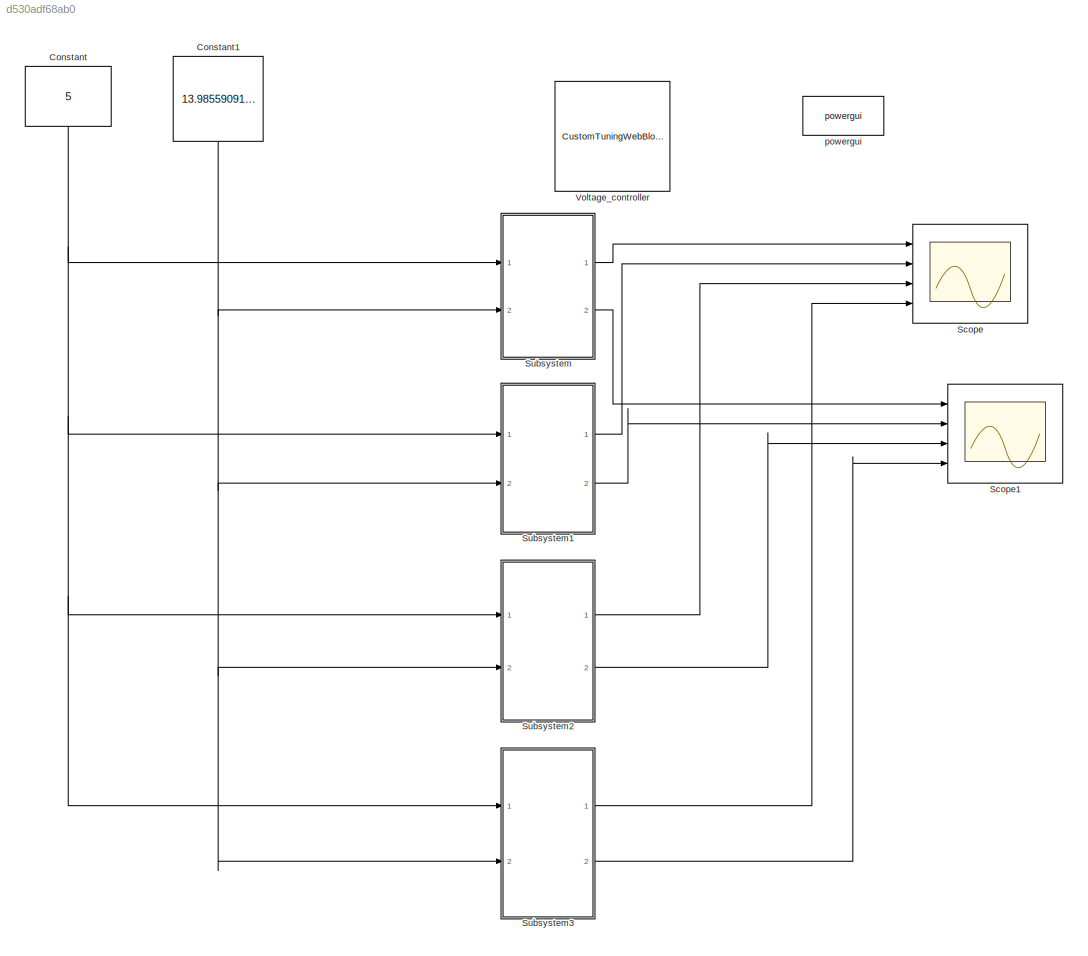
MODEL slx_d530adf68ab0
KIND model
CONFIG AbsTol = auto
CONFIG EnableMultiTasking = off
CONFIG FixedStep = auto
CONFIG MaxStep = auto
CONFIG MinStep = auto
CONFIG RelTol = 1e-3
CONFIG SampleTimeConstraint = Unconstrained
CONFIG SolverName = VariableStepAuto
CONFIG StartTime = 0.0
CONFIG StopTime = 1
BLOCK [Constant] Constant
  NameLocation = left
  Value = 5
BLOCK [Constant] Constant1
  NameLocation = left
  Value = 13.98559091336166
BLOCK [Scope] Scope
  Floating = off
  NumInputPorts = 4
  Ports = [4]
  ScopeSpecificationString = Simulink.scopes.TimeScopeBlockCfg('CurrentConfiguration', extmgr.ConfigurationSet(extmgr.Configuration('Core','General UI',true),extmgr.Configuration('Core','Source UI',true),extmgr.Configuration('Sources','WiredSimulink',true,'DataLoggingVariableName','ScopeData3'),extmgr.Configuration('Visuals','Time Domain',true,'SerializedDisplays',{struct('MinYLimReal','-216.57302','MaxYLimReal','1779.26618',...<+1557ch>
BLOCK [Scope] Scope1
  Floating = off
  NumInputPorts = 4
  Ports = [4]
  ScopeSpecificationString = Simulink.scopes.TimeScopeBlockCfg('CurrentConfiguration', extmgr.ConfigurationSet(extmgr.Configuration('Core','General UI',true),extmgr.Configuration('Core','Source UI',true),extmgr.Configuration('Sources','WiredSimulink',true,'DataLoggingVariableName','ScopeData4'),extmgr.Configuration('Visuals','Time Domain',true,'SerializedDisplays',{struct('MinYLimReal','-6.73725','MaxYLimReal','60.63522','YLa...<+1666ch>
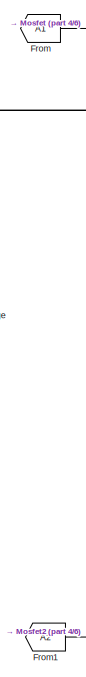
[diagram: Subsystem - part 1/6, top left region]
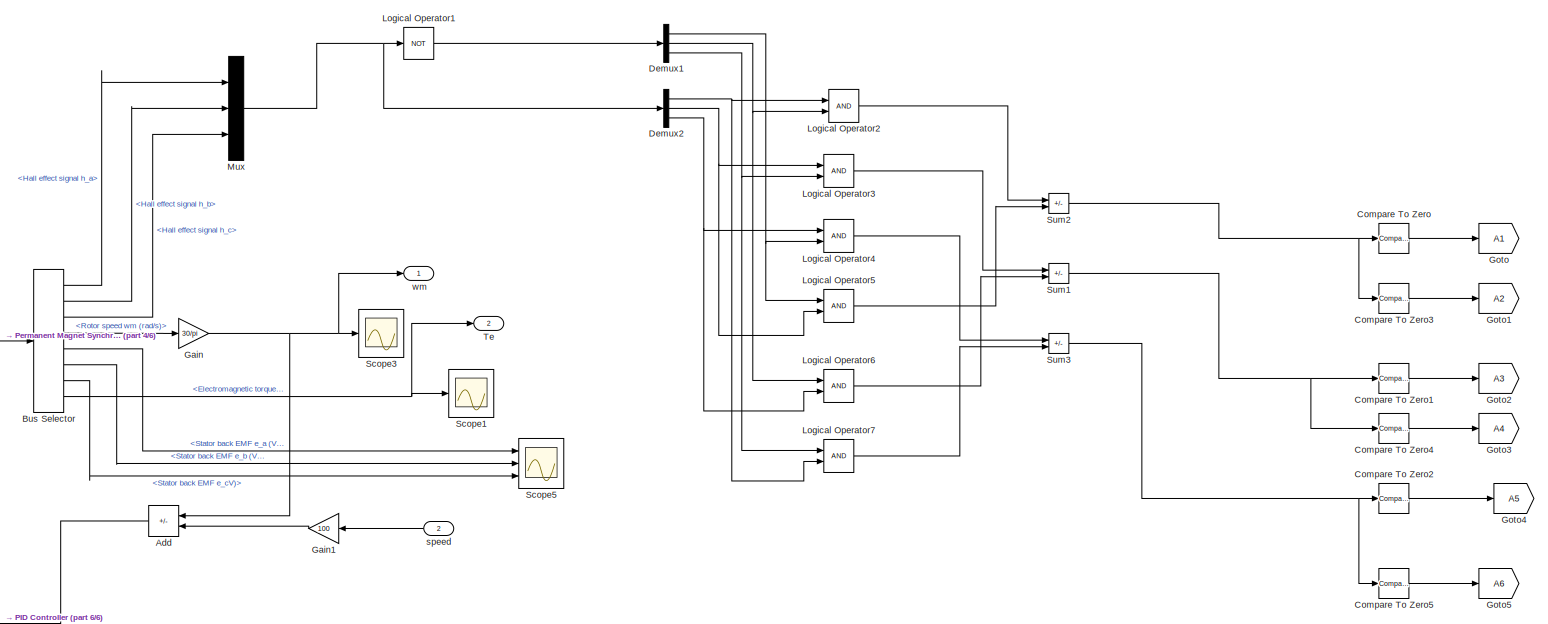
[diagram: Subsystem - part 2/6, top right region]
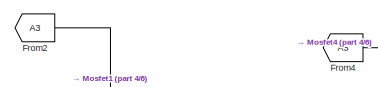
[diagram: Subsystem - part 3/6, top left region]
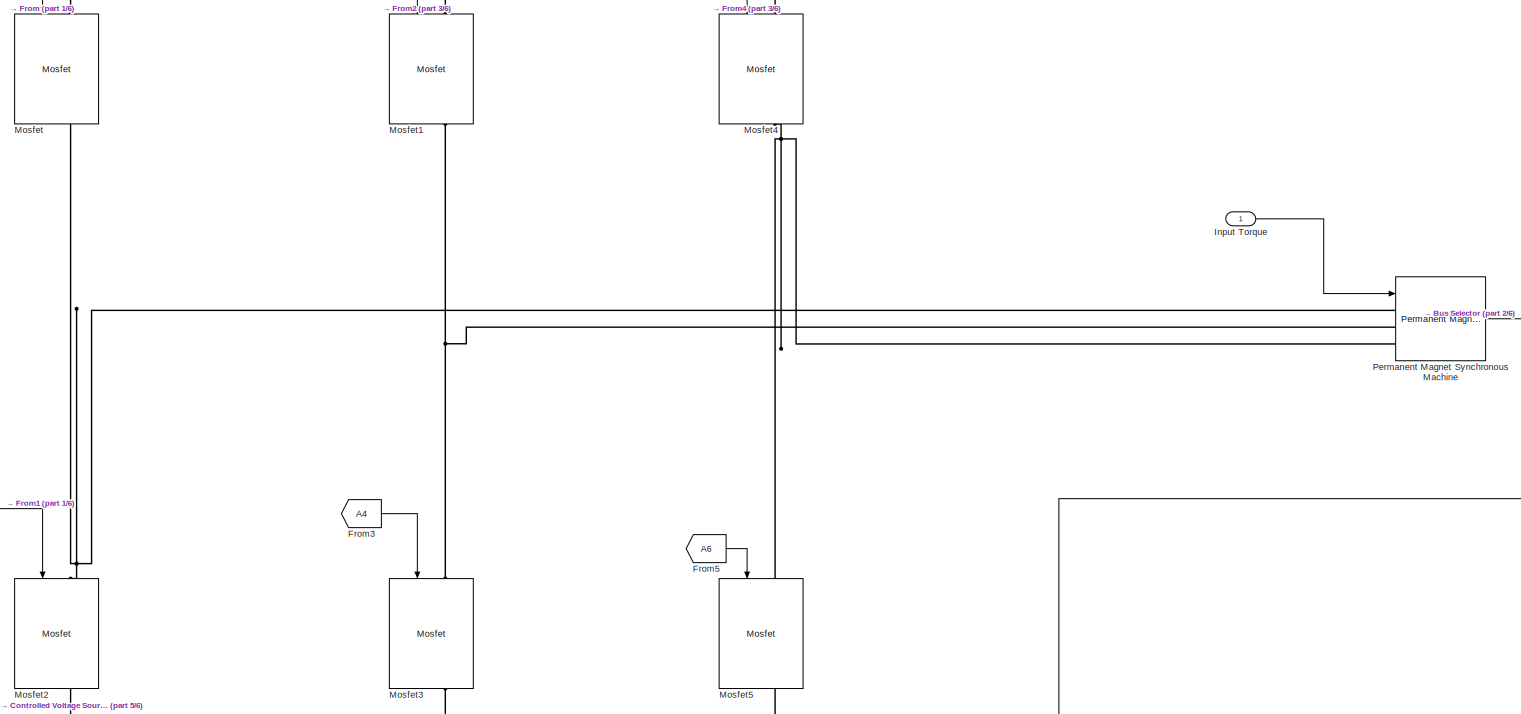
[diagram: Subsystem - part 4/6, middle left region]
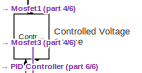
[diagram: Subsystem - part 5/6, top left region]
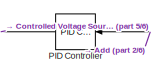
[diagram: Subsystem - part 6/6, central region]
BLOCK [SubSystem] Subsystem
  Ports = [2, 2]
  RequestExecContextInheritance = off
BLOCK [Sum] Subsystem/Add
  IconShape = rectangular
  Inputs = -+
  Ports = [2, 1]
BLOCK [BusSelector] Subsystem/Bus Selector
  OutputSignals = Hall effect signal h_a,Hall effect signal h_b,Hall effect signal h_c,Rotor speed wm (rad/s),Stator back EMF e_a (V),Stator back EMF e_b (V),Stator back EMF e_cV),Electromagnetic torque Te (N*m)  <repeated x4 — deduplicated; at blocks: Bus Selector>
  Ports = [1, 8]
BLOCK [Reference] Subsystem/Compare To Zero  REF=simulink/Logic and Bit
Operations/Compare
To Zero
  NameLocation = top
  Ports = [1, 1]
  SourceBlock = simulink/Logic and Bit\nOperations/Compare\nTo Zero
  SourceProductBaseCode = SL
  SourceType = Compare To Zero
BLOCK [Reference] Subsystem/Compare To Zero1  REF=simulink/Logic and Bit
Operations/Compare
To Zero
  NameLocation = top
  Ports = [1, 1]
  SourceBlock = simulink/Logic and Bit\nOperations/Compare\nTo Zero
  SourceProductBaseCode = SL
  SourceType = Compare To Zero
BLOCK [Reference] Subsystem/Compare To Zero2  REF=simulink/Logic and Bit
Operations/Compare
To Zero
  NameLocation = top
  Ports = [1, 1]
  SourceBlock = simulink/Logic and Bit\nOperations/Compare\nTo Zero
  SourceProductBaseCode = SL
  SourceType = Compare To Zero
BLOCK [Reference] Subsystem/Compare To Zero3  REF=simulink/Logic and Bit
Operations/Compare
To Zero
  NameLocation = top
  Ports = [1, 1]
  SourceBlock = simulink/Logic and Bit\nOperations/Compare\nTo Zero
  SourceProductBaseCode = SL
  SourceType = Compare To Zero
BLOCK [Reference] Subsystem/Compare To Zero4  REF=simulink/Logic and Bit
Operations/Compare
To Zero
  NameLocation = top
  Ports = [1, 1]
  SourceBlock = simulink/Logic and Bit\nOperations/Compare\nTo Zero
  SourceProductBaseCode = SL
  SourceType = Compare To Zero
BLOCK [Reference] Subsystem/Compare To Zero5  REF=simulink/Logic and Bit
Operations/Compare
To Zero
  NameLocation = top
  Ports = [1, 1]
  SourceBlock = simulink/Logic and Bit\nOperations/Compare\nTo Zero
  SourceProductBaseCode = SL
  SourceType = Compare To Zero
BLOCK [Reference] Subsystem/Controlled Voltage Source  REF=spsControlledVoltageSourceLib/Controlled Voltage Source
  Ports = [1, 0, 0, 0, 0, 1, 1]
  SourceBlock = spsControlledVoltageSourceLib/Controlled Voltage Source
  SourceProductBaseCode = PS
  SourceType = Controlled Voltage Source
BLOCK [Demux] Subsystem/Demux1
  Outputs = 3
  Ports = [1, 3]
BLOCK [Demux] Subsystem/Demux2
  Outputs = 3
  Ports = [1, 3]
BLOCK [From] Subsystem/From
  GotoTag = A1
BLOCK [From] Subsystem/From1
  GotoTag = A2
BLOCK [From] Subsystem/From2
  GotoTag = A3
BLOCK [From] Subsystem/From3
  GotoTag = A4
BLOCK [From] Subsystem/From4
  GotoTag = A5
BLOCK [From] Subsystem/From5
  GotoTag = A6
BLOCK [Gain] Subsystem/Gain
  Gain = 30/pi
BLOCK [Gain] Subsystem/Gain1
  Gain = 100
  NameLocation = top
BLOCK [Goto] Subsystem/Goto
  GotoTag = A1
BLOCK [Goto] Subsystem/Goto1
  GotoTag = A2
BLOCK [Goto] Subsystem/Goto2
  GotoTag = A3
BLOCK [Goto] Subsystem/Goto3
  GotoTag = A4
BLOCK [Goto] Subsystem/Goto4
  GotoTag = A5
BLOCK [Goto] Subsystem/Goto5
  GotoTag = A6
BLOCK [Inport] Subsystem/Input Torque
BLOCK [Logic] Subsystem/Logical Operator1
  AllPortsSameDT = off
  Operator = NOT
  OutDataTypeStr = boolean
  Ports = [1, 1]
BLOCK [Logic] Subsystem/Logical Operator2
  AllPortsSameDT = off
  OutDataTypeStr = boolean
  Ports = [2, 1]
BLOCK [Logic] Subsystem/Logical Operator3
  AllPortsSameDT = off
  OutDataTypeStr = boolean
  Ports = [2, 1]
BLOCK [Logic] Subsystem/Logical Operator4
  AllPortsSameDT = off
  OutDataTypeStr = boolean
  Ports = [2, 1]
BLOCK [Logic] Subsystem/Logical Operator5
  AllPortsSameDT = off
  OutDataTypeStr = boolean
  Ports = [2, 1]
BLOCK [Logic] Subsystem/Logical Operator6
  AllPortsSameDT = off
  OutDataTypeStr = boolean
  Ports = [2, 1]
BLOCK [Logic] Subsystem/Logical Operator7
  AllPortsSameDT = off
  OutDataTypeStr = boolean
  Ports = [2, 1]
BLOCK [Reference] Subsystem/Mosfet  REF=spsMosfetLib/Mosfet
  NameLocation = left
  Ports = [1, 1, 0, 0, 0, 1, 1]
  SourceBlock = spsMosfetLib/Mosfet
  SourceProductBaseCode = PS
  SourceType = Mosfet
BLOCK [Reference] Subsystem/Mosfet1  REF=spsMosfetLib/Mosfet
  NameLocation = left
  Ports = [1, 1, 0, 0, 0, 1, 1]
  SourceBlock = spsMosfetLib/Mosfet
  SourceProductBaseCode = PS
  SourceType = Mosfet
BLOCK [Reference] Subsystem/Mosfet2  REF=spsMosfetLib/Mosfet
  NameLocation = left
  Ports = [1, 1, 0, 0, 0, 1, 1]
  SourceBlock = spsMosfetLib/Mosfet
  SourceProductBaseCode = PS
  SourceType = Mosfet
BLOCK [Reference] Subsystem/Mosfet3  REF=spsMosfetLib/Mosfet
  NameLocation = left
  Ports = [1, 1, 0, 0, 0, 1, 1]
  SourceBlock = spsMosfetLib/Mosfet
  SourceProductBaseCode = PS
  SourceType = Mosfet
BLOCK [Reference] Subsystem/Mosfet4  REF=spsMosfetLib/Mosfet
  NameLocation = left
  Ports = [1, 1, 0, 0, 0, 1, 1]
  SourceBlock = spsMosfetLib/Mosfet
  SourceProductBaseCode = PS
  SourceType = Mosfet
BLOCK [Reference] Subsystem/Mosfet5  REF=spsMosfetLib/Mosfet
  NameLocation = left
  Ports = [1, 1, 0, 0, 0, 1, 1]
  SourceBlock = spsMosfetLib/Mosfet
  SourceProductBaseCode = PS
  SourceType = Mosfet
BLOCK [Mux] Subsystem/Mux
  DisplayOption = bar
  Inputs = 3
  Ports = [3, 1]
BLOCK [Reference] Subsystem/PID Controller  REF=slpidlib/PID Controller
  NameLocation = top
  Ports = [1, 1]
  SourceBlock = slpidlib/PID Controller
  SourceProductBaseCode = SL
  SourceType = PID 1dof
BLOCK [Reference] Subsystem/Permanent Magnet Synchronous Machine  REF=spsPermanentMagnetSynchronousMachineLib/Permanent Magnet
Synchronous Machine
  Ports = [1, 1, 0, 0, 0, 3]
  SourceBlock = spsPermanentMagnetSynchronousMachineLib/Permanent Magnet\nSynchronous Machine
  SourceProductBaseCode = PS
  SourceType = Permanent Magnet Synchronous Machine
BLOCK [Scope] Subsystem/Scope1
  Floating = off
  NumInputPorts = 1
  Ports = [1]
  ScopeSpecificationString = Simulink.scopes.TimeScopeBlockCfg('CurrentConfiguration', extmgr.ConfigurationSet(extmgr.Configuration('Core','General UI',true),extmgr.Configuration('Core','Source UI',true),extmgr.Configuration('Sources','WiredSimulink',true,'DataLoggingVariableName','ScopeData1'),extmgr.Configuration('Visuals','Time Domain',true,'SerializedDisplays',{struct('MinYLimReal','-15.67404','MaxYLimReal','52.63352','YL...<+1487ch>  <repeated x4 — deduplicated; at blocks: Scope1>
BLOCK [Scope] Subsystem/Scope3
  Floating = off
  NumInputPorts = 1
  Ports = [1]
  ScopeSpecificationString = Simulink.scopes.TimeScopeBlockCfg('CurrentConfiguration', extmgr.ConfigurationSet(extmgr.Configuration('Core','General UI',true),extmgr.Configuration('Core','Source UI',true),extmgr.Configuration('Sources','WiredSimulink',true,'DataLoggingVariableName','ScopeData2'),extmgr.Configuration('Visuals','Time Domain',true,'SerializedDisplays',{struct('MinYLimReal','-253.95955','MaxYLimReal','1375.95991',...<+1445ch>  <repeated x4 — deduplicated; at blocks: Scope3>
BLOCK [Scope] Subsystem/Scope5
  Floating = off
  NumInputPorts = 3
  Ports = [3]
  ScopeSpecificationString = Simulink.scopes.TimeScopeBlockCfg('CurrentConfiguration', extmgr.ConfigurationSet(extmgr.Configuration('Core','General UI',true),extmgr.Configuration('Core','Source UI',true),extmgr.Configuration('Sources','WiredSimulink',true),extmgr.Configuration('Visuals','Time Domain',true,'SerializedDisplays',{struct('MinYLimReal','-75.83196','MaxYLimReal','75.83196','YLabelReal','','MinYLimMag','0.00000','Ma...<+1459ch>  <repeated x4 — deduplicated; at blocks: Scope5>
BLOCK [Sum] Subsystem/Sum1
  IconShape = rectangular
  Inputs = +-
  OutDataTypeStr = double
  Ports = [2, 1]
BLOCK [Sum] Subsystem/Sum2
  IconShape = rectangular
  Inputs = +-
  OutDataTypeStr = double
  Ports = [2, 1]
BLOCK [Sum] Subsystem/Sum3
  IconShape = rectangular
  Inputs = +-
  OutDataTypeStr = double
  Ports = [2, 1]
BLOCK [Outport] Subsystem/Te
  Port = 2
BLOCK [Inport] Subsystem/speed
  Port = 2
BLOCK [Outport] Subsystem/wm
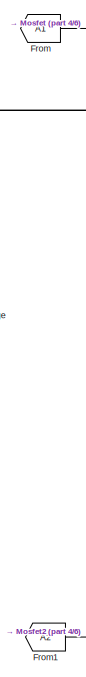
[diagram: Subsystem1 - part 1/6, top left region]
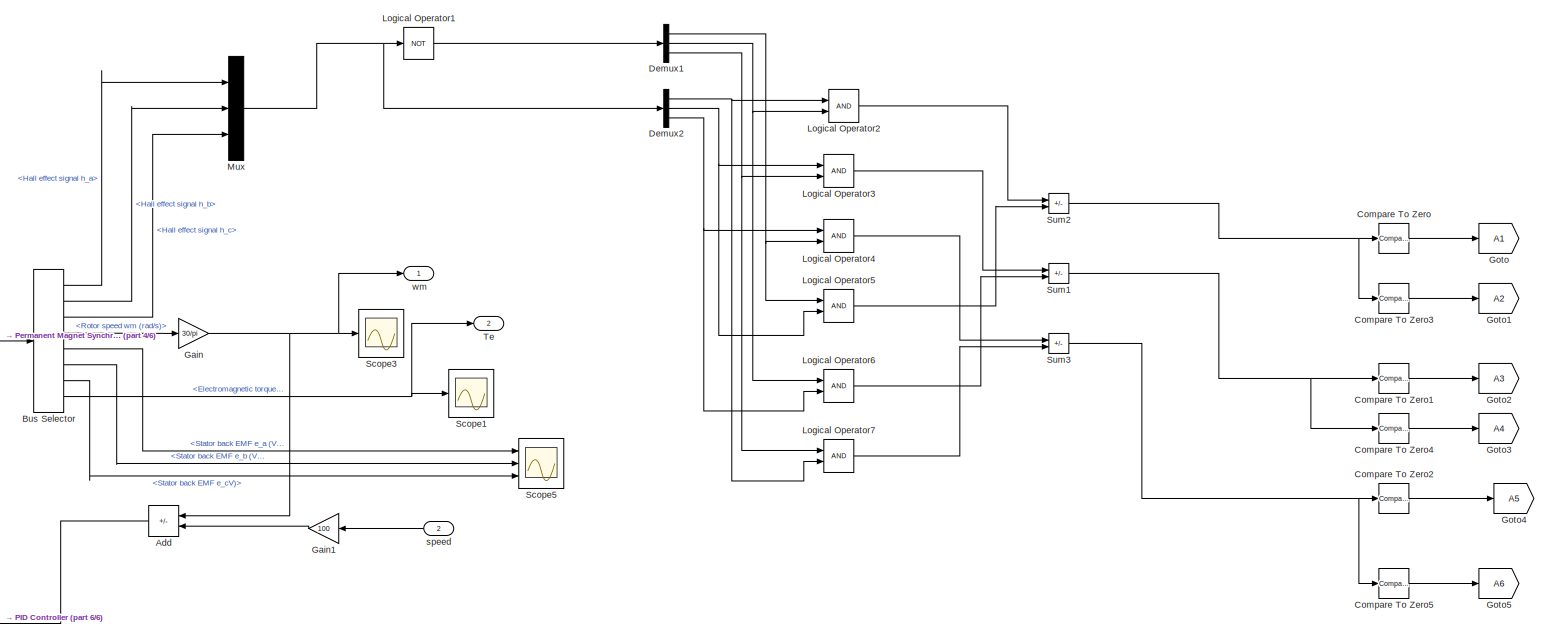
[diagram: Subsystem1 - part 2/6, top right region]
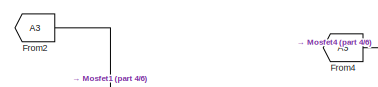
[diagram: Subsystem1 - part 3/6, top left region]
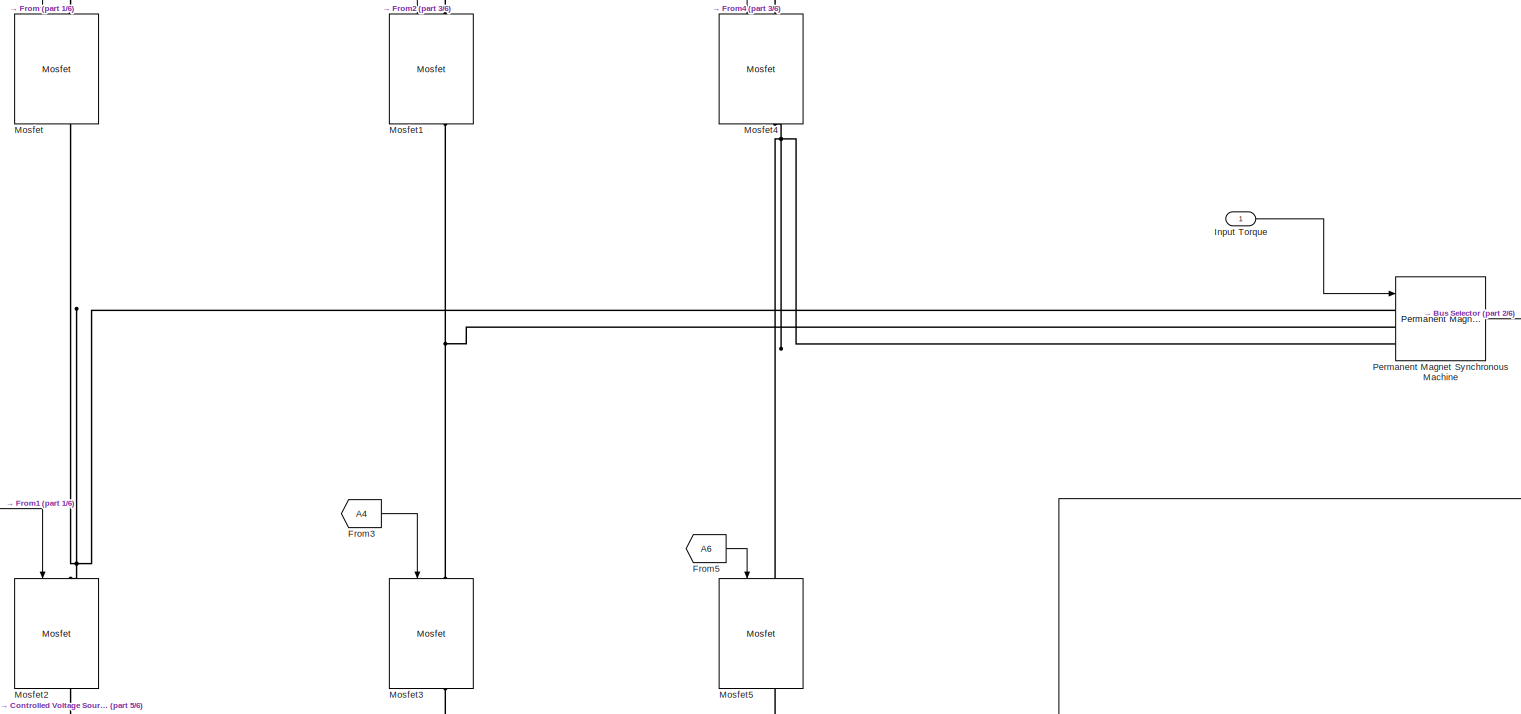
[diagram: Subsystem1 - part 4/6, middle left region]
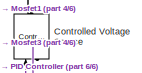
[diagram: Subsystem1 - part 5/6, top left region]
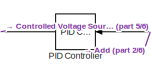
[diagram: Subsystem1 - part 6/6, central region]
BLOCK [SubSystem] Subsystem1
  Ports = [2, 2]
  RequestExecContextInheritance = off
BLOCK [Sum] Subsystem1/Add
  IconShape = rectangular
  Inputs = -+
  Ports = [2, 1]
BLOCK [BusSelector] Subsystem1/Bus Selector
  Ports = [1, 8]
BLOCK [Reference] Subsystem1/Compare To Zero  REF=simulink/Logic and Bit
Operations/Compare
To Zero
  NameLocation = top
  Ports = [1, 1]
  SourceBlock = simulink/Logic and Bit\nOperations/Compare\nTo Zero
  SourceProductBaseCode = SL
  SourceType = Compare To Zero
BLOCK [Reference] Subsystem1/Compare To Zero1  REF=simulink/Logic and Bit
Operations/Compare
To Zero
  NameLocation = top
  Ports = [1, 1]
  SourceBlock = simulink/Logic and Bit\nOperations/Compare\nTo Zero
  SourceProductBaseCode = SL
  SourceType = Compare To Zero
BLOCK [Reference] Subsystem1/Compare To Zero2  REF=simulink/Logic and Bit
Operations/Compare
To Zero
  NameLocation = top
  Ports = [1, 1]
  SourceBlock = simulink/Logic and Bit\nOperations/Compare\nTo Zero
  SourceProductBaseCode = SL
  SourceType = Compare To Zero
BLOCK [Reference] Subsystem1/Compare To Zero3  REF=simulink/Logic and Bit
Operations/Compare
To Zero
  NameLocation = top
  Ports = [1, 1]
  SourceBlock = simulink/Logic and Bit\nOperations/Compare\nTo Zero
  SourceProductBaseCode = SL
  SourceType = Compare To Zero
BLOCK [Reference] Subsystem1/Compare To Zero4  REF=simulink/Logic and Bit
Operations/Compare
To Zero
  NameLocation = top
  Ports = [1, 1]
  SourceBlock = simulink/Logic and Bit\nOperations/Compare\nTo Zero
  SourceProductBaseCode = SL
  SourceType = Compare To Zero
BLOCK [Reference] Subsystem1/Compare To Zero5  REF=simulink/Logic and Bit
Operations/Compare
To Zero
  NameLocation = top
  Ports = [1, 1]
  SourceBlock = simulink/Logic and Bit\nOperations/Compare\nTo Zero
  SourceProductBaseCode = SL
  SourceType = Compare To Zero
BLOCK [Reference] Subsystem1/Controlled Voltage Source  REF=spsControlledVoltageSourceLib/Controlled Voltage Source
  Ports = [1, 0, 0, 0, 0, 1, 1]
  SourceBlock = spsControlledVoltageSourceLib/Controlled Voltage Source
  SourceProductBaseCode = PS
  SourceType = Controlled Voltage Source
BLOCK [Demux] Subsystem1/Demux1
  Outputs = 3
  Ports = [1, 3]
BLOCK [Demux] Subsystem1/Demux2
  Outputs = 3
  Ports = [1, 3]
BLOCK [From] Subsystem1/From
  GotoTag = A1
BLOCK [From] Subsystem1/From1
  GotoTag = A2
BLOCK [From] Subsystem1/From2
  GotoTag = A3
BLOCK [From] Subsystem1/From3
  GotoTag = A4
BLOCK [From] Subsystem1/From4
  GotoTag = A5
BLOCK [From] Subsystem1/From5
  GotoTag = A6
BLOCK [Gain] Subsystem1/Gain
  Gain = 30/pi
BLOCK [Gain] Subsystem1/Gain1
  Gain = 100
  NameLocation = top
BLOCK [Goto] Subsystem1/Goto
  GotoTag = A1
BLOCK [Goto] Subsystem1/Goto1
  GotoTag = A2
BLOCK [Goto] Subsystem1/Goto2
  GotoTag = A3
BLOCK [Goto] Subsystem1/Goto3
  GotoTag = A4
BLOCK [Goto] Subsystem1/Goto4
  GotoTag = A5
BLOCK [Goto] Subsystem1/Goto5
  GotoTag = A6
BLOCK [Inport] Subsystem1/Input Torque
BLOCK [Logic] Subsystem1/Logical Operator1
  AllPortsSameDT = off
  Operator = NOT
  OutDataTypeStr = boolean
  Ports = [1, 1]
BLOCK [Logic] Subsystem1/Logical Operator2
  AllPortsSameDT = off
  OutDataTypeStr = boolean
  Ports = [2, 1]
BLOCK [Logic] Subsystem1/Logical Operator3
  AllPortsSameDT = off
  OutDataTypeStr = boolean
  Ports = [2, 1]
BLOCK [Logic] Subsystem1/Logical Operator4
  AllPortsSameDT = off
  OutDataTypeStr = boolean
  Ports = [2, 1]
BLOCK [Logic] Subsystem1/Logical Operator5
  AllPortsSameDT = off
  OutDataTypeStr = boolean
  Ports = [2, 1]
BLOCK [Logic] Subsystem1/Logical Operator6
  AllPortsSameDT = off
  OutDataTypeStr = boolean
  Ports = [2, 1]
BLOCK [Logic] Subsystem1/Logical Operator7
  AllPortsSameDT = off
  OutDataTypeStr = boolean
  Ports = [2, 1]
BLOCK [Reference] Subsystem1/Mosfet  REF=spsMosfetLib/Mosfet
  NameLocation = left
  Ports = [1, 1, 0, 0, 0, 1, 1]
  SourceBlock = spsMosfetLib/Mosfet
  SourceProductBaseCode = PS
  SourceType = Mosfet
BLOCK [Reference] Subsystem1/Mosfet1  REF=spsMosfetLib/Mosfet
  NameLocation = left
  Ports = [1, 1, 0, 0, 0, 1, 1]
  SourceBlock = spsMosfetLib/Mosfet
  SourceProductBaseCode = PS
  SourceType = Mosfet
BLOCK [Reference] Subsystem1/Mosfet2  REF=spsMosfetLib/Mosfet
  NameLocation = left
  Ports = [1, 1, 0, 0, 0, 1, 1]
  SourceBlock = spsMosfetLib/Mosfet
  SourceProductBaseCode = PS
  SourceType = Mosfet
BLOCK [Reference] Subsystem1/Mosfet3  REF=spsMosfetLib/Mosfet
  NameLocation = left
  Ports = [1, 1, 0, 0, 0, 1, 1]
  SourceBlock = spsMosfetLib/Mosfet
  SourceProductBaseCode = PS
  SourceType = Mosfet
BLOCK [Reference] Subsystem1/Mosfet4  REF=spsMosfetLib/Mosfet
  NameLocation = left
  Ports = [1, 1, 0, 0, 0, 1, 1]
  SourceBlock = spsMosfetLib/Mosfet
  SourceProductBaseCode = PS
  SourceType = Mosfet
BLOCK [Reference] Subsystem1/Mosfet5  REF=spsMosfetLib/Mosfet
  NameLocation = left
  Ports = [1, 1, 0, 0, 0, 1, 1]
  SourceBlock = spsMosfetLib/Mosfet
  SourceProductBaseCode = PS
  SourceType = Mosfet
BLOCK [Mux] Subsystem1/Mux
  DisplayOption = bar
  Inputs = 3
  Ports = [3, 1]
BLOCK [Reference] Subsystem1/PID Controller  REF=slpidlib/PID Controller
  NameLocation = top
  Ports = [1, 1]
  SourceBlock = slpidlib/PID Controller
  SourceProductBaseCode = SL
  SourceType = PID 1dof
BLOCK [Reference] Subsystem1/Permanent Magnet Synchronous Machine  REF=spsPermanentMagnetSynchronousMachineLib/Permanent Magnet
Synchronous Machine
  Ports = [1, 1, 0, 0, 0, 3]
  SourceBlock = spsPermanentMagnetSynchronousMachineLib/Permanent Magnet\nSynchronous Machine
  SourceProductBaseCode = PS
  SourceType = Permanent Magnet Synchronous Machine
BLOCK [Scope] Subsystem1/Scope1
  Floating = off
  NumInputPorts = 1
  Ports = [1]
BLOCK [Scope] Subsystem1/Scope3
  Floating = off
  NumInputPorts = 1
  Ports = [1]
BLOCK [Scope] Subsystem1/Scope5
  Floating = off
  NumInputPorts = 3
  Ports = [3]
BLOCK [Sum] Subsystem1/Sum1
  IconShape = rectangular
  Inputs = +-
  OutDataTypeStr = double
  Ports = [2, 1]
BLOCK [Sum] Subsystem1/Sum2
  IconShape = rectangular
  Inputs = +-
  OutDataTypeStr = double
  Ports = [2, 1]
BLOCK [Sum] Subsystem1/Sum3
  IconShape = rectangular
  Inputs = +-
  OutDataTypeStr = double
  Ports = [2, 1]
BLOCK [Outport] Subsystem1/Te
  Port = 2
BLOCK [Inport] Subsystem1/speed
  Port = 2
BLOCK [Outport] Subsystem1/wm
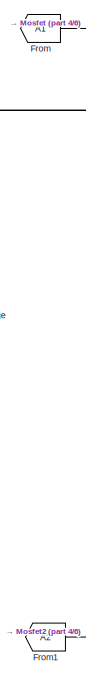
[diagram: Subsystem2 - part 1/6, top left region]
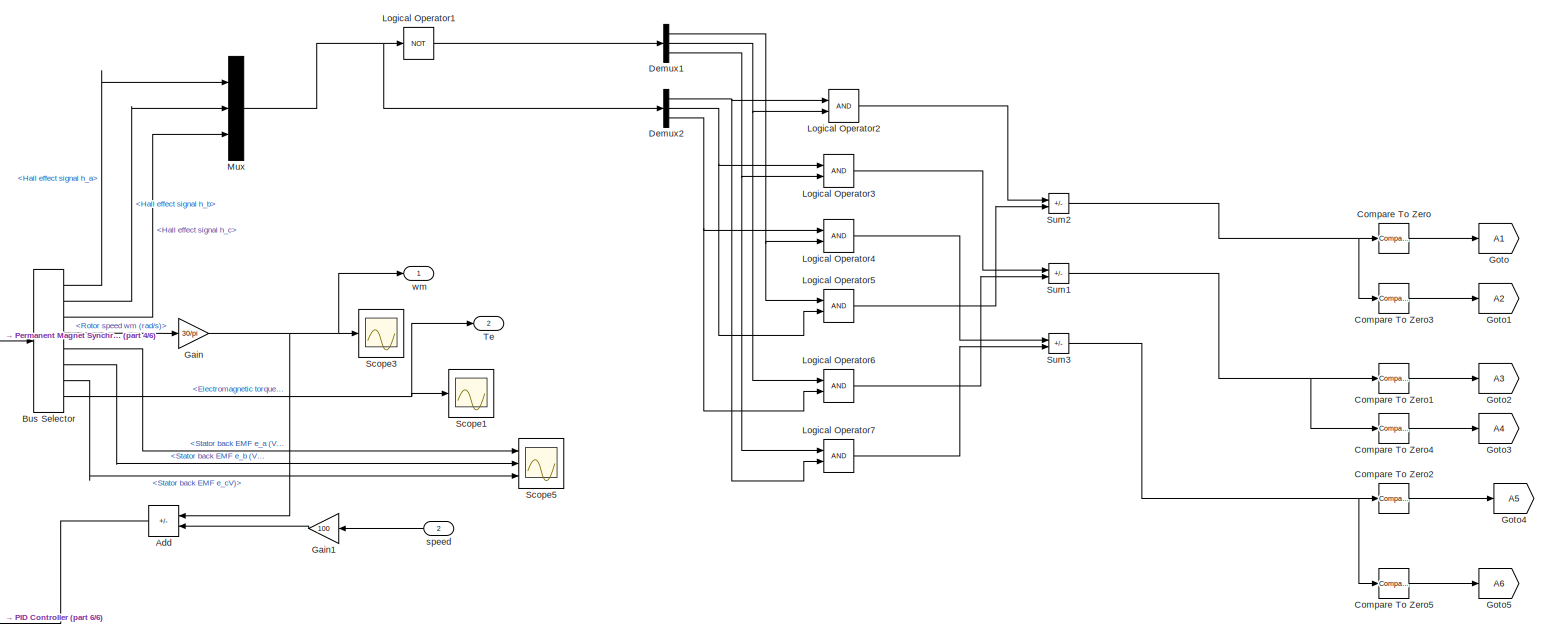
[diagram: Subsystem2 - part 2/6, top right region]
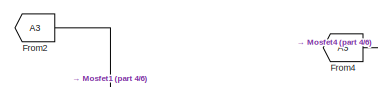
[diagram: Subsystem2 - part 3/6, top left region]
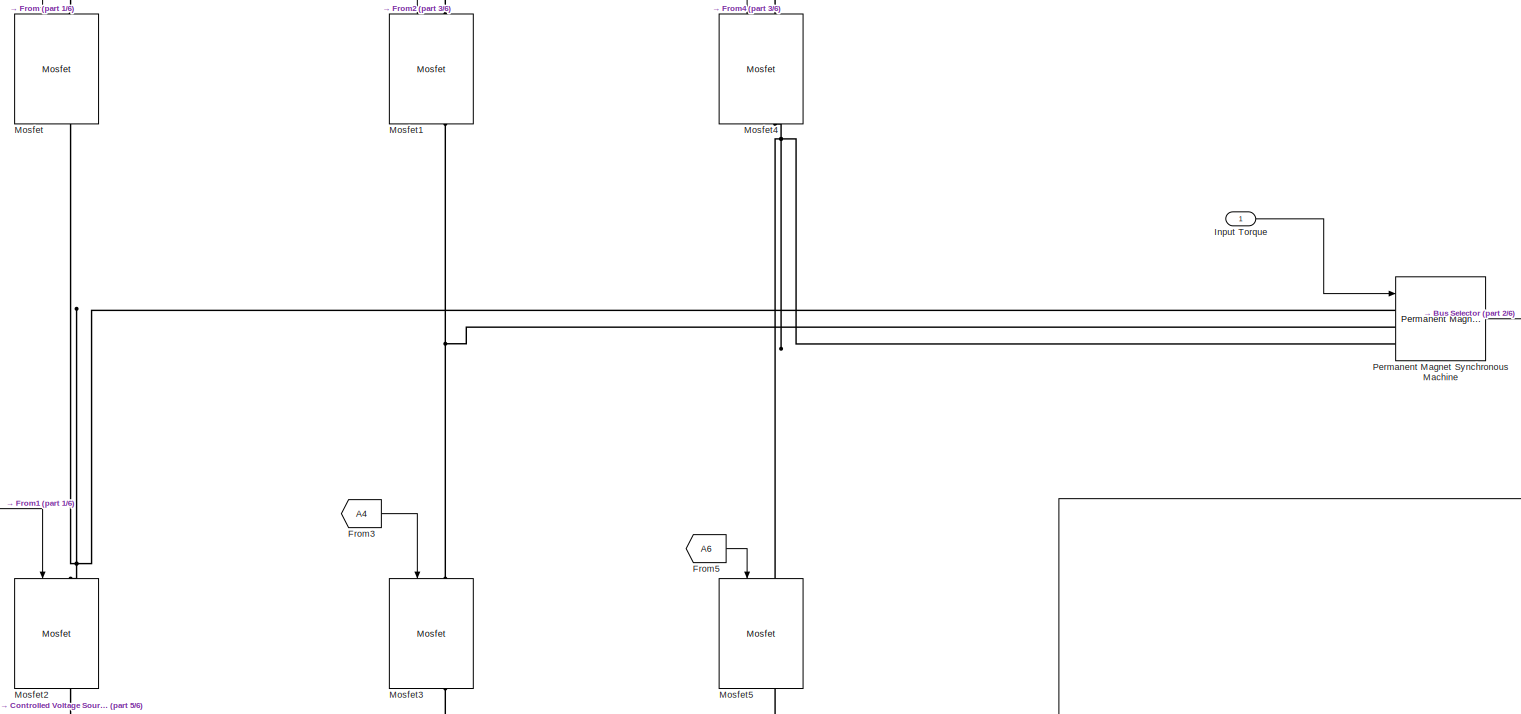
[diagram: Subsystem2 - part 4/6, middle left region]
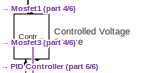
[diagram: Subsystem2 - part 5/6, top left region]
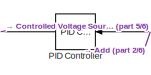
[diagram: Subsystem2 - part 6/6, central region]
BLOCK [SubSystem] Subsystem2
  Ports = [2, 2]
  RequestExecContextInheritance = off
BLOCK [Sum] Subsystem2/Add
  IconShape = rectangular
  Inputs = -+
  Ports = [2, 1]
BLOCK [BusSelector] Subsystem2/Bus Selector
  Ports = [1, 8]
BLOCK [Reference] Subsystem2/Compare To Zero  REF=simulink/Logic and Bit
Operations/Compare
To Zero
  NameLocation = top
  Ports = [1, 1]
  SourceBlock = simulink/Logic and Bit\nOperations/Compare\nTo Zero
  SourceProductBaseCode = SL
  SourceType = Compare To Zero
BLOCK [Reference] Subsystem2/Compare To Zero1  REF=simulink/Logic and Bit
Operations/Compare
To Zero
  NameLocation = top
  Ports = [1, 1]
  SourceBlock = simulink/Logic and Bit\nOperations/Compare\nTo Zero
  SourceProductBaseCode = SL
  SourceType = Compare To Zero
BLOCK [Reference] Subsystem2/Compare To Zero2  REF=simulink/Logic and Bit
Operations/Compare
To Zero
  NameLocation = top
  Ports = [1, 1]
  SourceBlock = simulink/Logic and Bit\nOperations/Compare\nTo Zero
  SourceProductBaseCode = SL
  SourceType = Compare To Zero
BLOCK [Reference] Subsystem2/Compare To Zero3  REF=simulink/Logic and Bit
Operations/Compare
To Zero
  NameLocation = top
  Ports = [1, 1]
  SourceBlock = simulink/Logic and Bit\nOperations/Compare\nTo Zero
  SourceProductBaseCode = SL
  SourceType = Compare To Zero
BLOCK [Reference] Subsystem2/Compare To Zero4  REF=simulink/Logic and Bit
Operations/Compare
To Zero
  NameLocation = top
  Ports = [1, 1]
  SourceBlock = simulink/Logic and Bit\nOperations/Compare\nTo Zero
  SourceProductBaseCode = SL
  SourceType = Compare To Zero
BLOCK [Reference] Subsystem2/Compare To Zero5  REF=simulink/Logic and Bit
Operations/Compare
To Zero
  NameLocation = top
  Ports = [1, 1]
  SourceBlock = simulink/Logic and Bit\nOperations/Compare\nTo Zero
  SourceProductBaseCode = SL
  SourceType = Compare To Zero
BLOCK [Reference] Subsystem2/Controlled Voltage Source  REF=spsControlledVoltageSourceLib/Controlled Voltage Source
  Ports = [1, 0, 0, 0, 0, 1, 1]
  SourceBlock = spsControlledVoltageSourceLib/Controlled Voltage Source
  SourceProductBaseCode = PS
  SourceType = Controlled Voltage Source
BLOCK [Demux] Subsystem2/Demux1
  Outputs = 3
  Ports = [1, 3]
BLOCK [Demux] Subsystem2/Demux2
  Outputs = 3
  Ports = [1, 3]
BLOCK [From] Subsystem2/From
  GotoTag = A1
BLOCK [From] Subsystem2/From1
  GotoTag = A2
BLOCK [From] Subsystem2/From2
  GotoTag = A3
BLOCK [From] Subsystem2/From3
  GotoTag = A4
BLOCK [From] Subsystem2/From4
  GotoTag = A5
BLOCK [From] Subsystem2/From5
  GotoTag = A6
BLOCK [Gain] Subsystem2/Gain
  Gain = 30/pi
BLOCK [Gain] Subsystem2/Gain1
  Gain = 100
  NameLocation = top
BLOCK [Goto] Subsystem2/Goto
  GotoTag = A1
BLOCK [Goto] Subsystem2/Goto1
  GotoTag = A2
BLOCK [Goto] Subsystem2/Goto2
  GotoTag = A3
BLOCK [Goto] Subsystem2/Goto3
  GotoTag = A4
BLOCK [Goto] Subsystem2/Goto4
  GotoTag = A5
BLOCK [Goto] Subsystem2/Goto5
  GotoTag = A6
BLOCK [Inport] Subsystem2/Input Torque
BLOCK [Logic] Subsystem2/Logical Operator1
  AllPortsSameDT = off
  Operator = NOT
  OutDataTypeStr = boolean
  Ports = [1, 1]
BLOCK [Logic] Subsystem2/Logical Operator2
  AllPortsSameDT = off
  OutDataTypeStr = boolean
  Ports = [2, 1]
BLOCK [Logic] Subsystem2/Logical Operator3
  AllPortsSameDT = off
  OutDataTypeStr = boolean
  Ports = [2, 1]
BLOCK [Logic] Subsystem2/Logical Operator4
  AllPortsSameDT = off
  OutDataTypeStr = boolean
  Ports = [2, 1]
BLOCK [Logic] Subsystem2/Logical Operator5
  AllPortsSameDT = off
  OutDataTypeStr = boolean
  Ports = [2, 1]
BLOCK [Logic] Subsystem2/Logical Operator6
  AllPortsSameDT = off
  OutDataTypeStr = boolean
  Ports = [2, 1]
BLOCK [Logic] Subsystem2/Logical Operator7
  AllPortsSameDT = off
  OutDataTypeStr = boolean
  Ports = [2, 1]
BLOCK [Reference] Subsystem2/Mosfet  REF=spsMosfetLib/Mosfet
  NameLocation = left
  Ports = [1, 1, 0, 0, 0, 1, 1]
  SourceBlock = spsMosfetLib/Mosfet
  SourceProductBaseCode = PS
  SourceType = Mosfet
BLOCK [Reference] Subsystem2/Mosfet1  REF=spsMosfetLib/Mosfet
  NameLocation = left
  Ports = [1, 1, 0, 0, 0, 1, 1]
  SourceBlock = spsMosfetLib/Mosfet
  SourceProductBaseCode = PS
  SourceType = Mosfet
BLOCK [Reference] Subsystem2/Mosfet2  REF=spsMosfetLib/Mosfet
  NameLocation = left
  Ports = [1, 1, 0, 0, 0, 1, 1]
  SourceBlock = spsMosfetLib/Mosfet
  SourceProductBaseCode = PS
  SourceType = Mosfet
BLOCK [Reference] Subsystem2/Mosfet3  REF=spsMosfetLib/Mosfet
  NameLocation = left
  Ports = [1, 1, 0, 0, 0, 1, 1]
  SourceBlock = spsMosfetLib/Mosfet
  SourceProductBaseCode = PS
  SourceType = Mosfet
BLOCK [Reference] Subsystem2/Mosfet4  REF=spsMosfetLib/Mosfet
  NameLocation = left
  Ports = [1, 1, 0, 0, 0, 1, 1]
  SourceBlock = spsMosfetLib/Mosfet
  SourceProductBaseCode = PS
  SourceType = Mosfet
BLOCK [Reference] Subsystem2/Mosfet5  REF=spsMosfetLib/Mosfet
  NameLocation = left
  Ports = [1, 1, 0, 0, 0, 1, 1]
  SourceBlock = spsMosfetLib/Mosfet
  SourceProductBaseCode = PS
  SourceType = Mosfet
BLOCK [Mux] Subsystem2/Mux
  DisplayOption = bar
  Inputs = 3
  Ports = [3, 1]
BLOCK [Reference] Subsystem2/PID Controller  REF=slpidlib/PID Controller
  NameLocation = top
  Ports = [1, 1]
  SourceBlock = slpidlib/PID Controller
  SourceProductBaseCode = SL
  SourceType = PID 1dof
BLOCK [Reference] Subsystem2/Permanent Magnet Synchronous Machine  REF=spsPermanentMagnetSynchronousMachineLib/Permanent Magnet
Synchronous Machine
  Ports = [1, 1, 0, 0, 0, 3]
  SourceBlock = spsPermanentMagnetSynchronousMachineLib/Permanent Magnet\nSynchronous Machine
  SourceProductBaseCode = PS
  SourceType = Permanent Magnet Synchronous Machine
BLOCK [Scope] Subsystem2/Scope1
  Floating = off
  NumInputPorts = 1
  Ports = [1]
BLOCK [Scope] Subsystem2/Scope3
  Floating = off
  NumInputPorts = 1
  Ports = [1]
BLOCK [Scope] Subsystem2/Scope5
  Floating = off
  NumInputPorts = 3
  Ports = [3]
BLOCK [Sum] Subsystem2/Sum1
  IconShape = rectangular
  Inputs = +-
  OutDataTypeStr = double
  Ports = [2, 1]
BLOCK [Sum] Subsystem2/Sum2
  IconShape = rectangular
  Inputs = +-
  OutDataTypeStr = double
  Ports = [2, 1]
BLOCK [Sum] Subsystem2/Sum3
  IconShape = rectangular
  Inputs = +-
  OutDataTypeStr = double
  Ports = [2, 1]
BLOCK [Outport] Subsystem2/Te
  Port = 2
BLOCK [Inport] Subsystem2/speed
  Port = 2
BLOCK [Outport] Subsystem2/wm
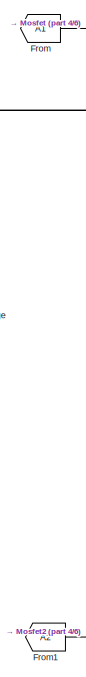
[diagram: Subsystem3 - part 1/6, top left region]
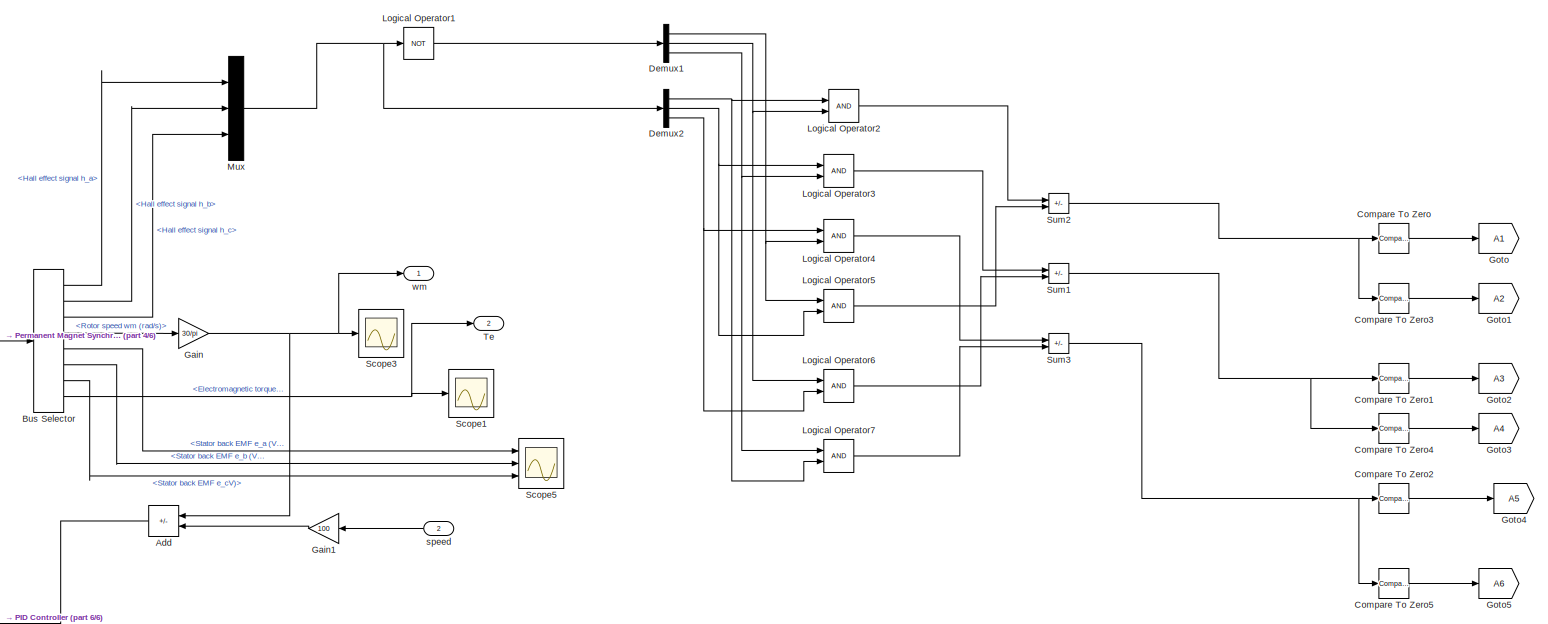
[diagram: Subsystem3 - part 2/6, top right region]
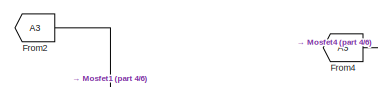
[diagram: Subsystem3 - part 3/6, top left region]
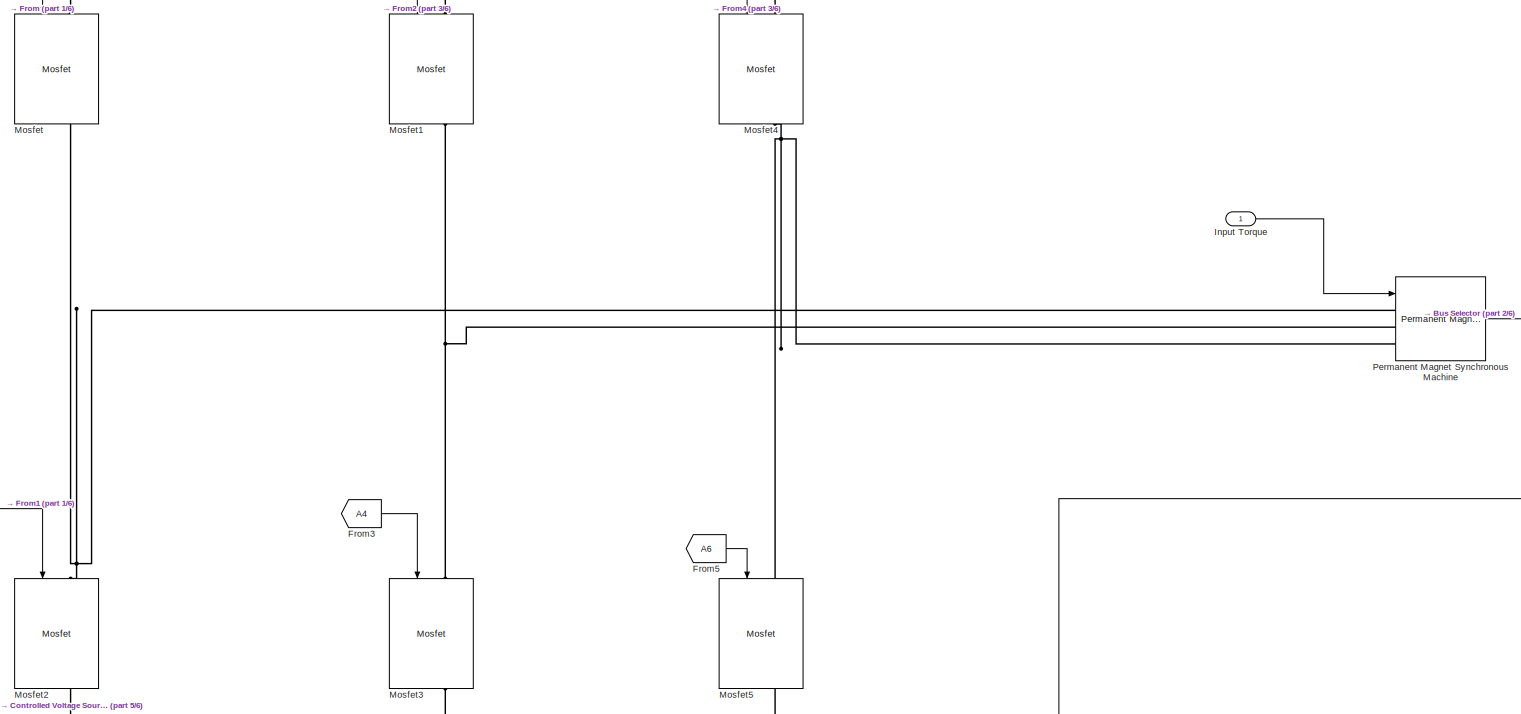
[diagram: Subsystem3 - part 4/6, middle left region]
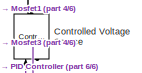
[diagram: Subsystem3 - part 5/6, top left region]
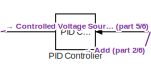
[diagram: Subsystem3 - part 6/6, central region]
BLOCK [SubSystem] Subsystem3
  Ports = [2, 2]
  RequestExecContextInheritance = off
BLOCK [Sum] Subsystem3/Add
  IconShape = rectangular
  Inputs = -+
  Ports = [2, 1]
BLOCK [BusSelector] Subsystem3/Bus Selector
  Ports = [1, 8]
BLOCK [Reference] Subsystem3/Compare To Zero  REF=simulink/Logic and Bit
Operations/Compare
To Zero
  NameLocation = top
  Ports = [1, 1]
  SourceBlock = simulink/Logic and Bit\nOperations/Compare\nTo Zero
  SourceProductBaseCode = SL
  SourceType = Compare To Zero
BLOCK [Reference] Subsystem3/Compare To Zero1  REF=simulink/Logic and Bit
Operations/Compare
To Zero
  NameLocation = top
  Ports = [1, 1]
  SourceBlock = simulink/Logic and Bit\nOperations/Compare\nTo Zero
  SourceProductBaseCode = SL
  SourceType = Compare To Zero
BLOCK [Reference] Subsystem3/Compare To Zero2  REF=simulink/Logic and Bit
Operations/Compare
To Zero
  NameLocation = top
  Ports = [1, 1]
  SourceBlock = simulink/Logic and Bit\nOperations/Compare\nTo Zero
  SourceProductBaseCode = SL
  SourceType = Compare To Zero
BLOCK [Reference] Subsystem3/Compare To Zero3  REF=simulink/Logic and Bit
Operations/Compare
To Zero
  NameLocation = top
  Ports = [1, 1]
  SourceBlock = simulink/Logic and Bit\nOperations/Compare\nTo Zero
  SourceProductBaseCode = SL
  SourceType = Compare To Zero
BLOCK [Reference] Subsystem3/Compare To Zero4  REF=simulink/Logic and Bit
Operations/Compare
To Zero
  NameLocation = top
  Ports = [1, 1]
  SourceBlock = simulink/Logic and Bit\nOperations/Compare\nTo Zero
  SourceProductBaseCode = SL
  SourceType = Compare To Zero
BLOCK [Reference] Subsystem3/Compare To Zero5  REF=simulink/Logic and Bit
Operations/Compare
To Zero
  NameLocation = top
  Ports = [1, 1]
  SourceBlock = simulink/Logic and Bit\nOperations/Compare\nTo Zero
  SourceProductBaseCode = SL
  SourceType = Compare To Zero
BLOCK [Reference] Subsystem3/Controlled Voltage Source  REF=spsControlledVoltageSourceLib/Controlled Voltage Source
  Ports = [1, 0, 0, 0, 0, 1, 1]
  SourceBlock = spsControlledVoltageSourceLib/Controlled Voltage Source
  SourceProductBaseCode = PS
  SourceType = Controlled Voltage Source
BLOCK [Demux] Subsystem3/Demux1
  Outputs = 3
  Ports = [1, 3]
BLOCK [Demux] Subsystem3/Demux2
  Outputs = 3
  Ports = [1, 3]
BLOCK [From] Subsystem3/From
  GotoTag = A1
BLOCK [From] Subsystem3/From1
  GotoTag = A2
BLOCK [From] Subsystem3/From2
  GotoTag = A3
BLOCK [From] Subsystem3/From3
  GotoTag = A4
BLOCK [From] Subsystem3/From4
  GotoTag = A5
BLOCK [From] Subsystem3/From5
  GotoTag = A6
BLOCK [Gain] Subsystem3/Gain
  Gain = 30/pi
BLOCK [Gain] Subsystem3/Gain1
  Gain = 100
  NameLocation = top
BLOCK [Goto] Subsystem3/Goto
  GotoTag = A1
BLOCK [Goto] Subsystem3/Goto1
  GotoTag = A2
BLOCK [Goto] Subsystem3/Goto2
  GotoTag = A3
BLOCK [Goto] Subsystem3/Goto3
  GotoTag = A4
BLOCK [Goto] Subsystem3/Goto4
  GotoTag = A5
BLOCK [Goto] Subsystem3/Goto5
  GotoTag = A6
BLOCK [Inport] Subsystem3/Input Torque
BLOCK [Logic] Subsystem3/Logical Operator1
  AllPortsSameDT = off
  Operator = NOT
  OutDataTypeStr = boolean
  Ports = [1, 1]
BLOCK [Logic] Subsystem3/Logical Operator2
  AllPortsSameDT = off
  OutDataTypeStr = boolean
  Ports = [2, 1]
BLOCK [Logic] Subsystem3/Logical Operator3
  AllPortsSameDT = off
  OutDataTypeStr = boolean
  Ports = [2, 1]
BLOCK [Logic] Subsystem3/Logical Operator4
  AllPortsSameDT = off
  OutDataTypeStr = boolean
  Ports = [2, 1]
BLOCK [Logic] Subsystem3/Logical Operator5
  AllPortsSameDT = off
  OutDataTypeStr = boolean
  Ports = [2, 1]
BLOCK [Logic] Subsystem3/Logical Operator6
  AllPortsSameDT = off
  OutDataTypeStr = boolean
  Ports = [2, 1]
BLOCK [Logic] Subsystem3/Logical Operator7
  AllPortsSameDT = off
  OutDataTypeStr = boolean
  Ports = [2, 1]
BLOCK [Reference] Subsystem3/Mosfet  REF=spsMosfetLib/Mosfet
  NameLocation = left
  Ports = [1, 1, 0, 0, 0, 1, 1]
  SourceBlock = spsMosfetLib/Mosfet
  SourceProductBaseCode = PS
  SourceType = Mosfet
BLOCK [Reference] Subsystem3/Mosfet1  REF=spsMosfetLib/Mosfet
  NameLocation = left
  Ports = [1, 1, 0, 0, 0, 1, 1]
  SourceBlock = spsMosfetLib/Mosfet
  SourceProductBaseCode = PS
  SourceType = Mosfet
BLOCK [Reference] Subsystem3/Mosfet2  REF=spsMosfetLib/Mosfet
  NameLocation = left
  Ports = [1, 1, 0, 0, 0, 1, 1]
  SourceBlock = spsMosfetLib/Mosfet
  SourceProductBaseCode = PS
  SourceType = Mosfet
BLOCK [Reference] Subsystem3/Mosfet3  REF=spsMosfetLib/Mosfet
  NameLocation = left
  Ports = [1, 1, 0, 0, 0, 1, 1]
  SourceBlock = spsMosfetLib/Mosfet
  SourceProductBaseCode = PS
  SourceType = Mosfet
BLOCK [Reference] Subsystem3/Mosfet4  REF=spsMosfetLib/Mosfet
  NameLocation = left
  Ports = [1, 1, 0, 0, 0, 1, 1]
  SourceBlock = spsMosfetLib/Mosfet
  SourceProductBaseCode = PS
  SourceType = Mosfet
BLOCK [Reference] Subsystem3/Mosfet5  REF=spsMosfetLib/Mosfet
  NameLocation = left
  Ports = [1, 1, 0, 0, 0, 1, 1]
  SourceBlock = spsMosfetLib/Mosfet
  SourceProductBaseCode = PS
  SourceType = Mosfet
BLOCK [Mux] Subsystem3/Mux
  DisplayOption = bar
  Inputs = 3
  Ports = [3, 1]
BLOCK [Reference] Subsystem3/PID Controller  REF=slpidlib/PID Controller
  NameLocation = top
  Ports = [1, 1]
  SourceBlock = slpidlib/PID Controller
  SourceProductBaseCode = SL
  SourceType = PID 1dof
BLOCK [Reference] Subsystem3/Permanent Magnet Synchronous Machine  REF=spsPermanentMagnetSynchronousMachineLib/Permanent Magnet
Synchronous Machine
  Ports = [1, 1, 0, 0, 0, 3]
  SourceBlock = spsPermanentMagnetSynchronousMachineLib/Permanent Magnet\nSynchronous Machine
  SourceProductBaseCode = PS
  SourceType = Permanent Magnet Synchronous Machine
BLOCK [Scope] Subsystem3/Scope1
  Floating = off
  NumInputPorts = 1
  Ports = [1]
BLOCK [Scope] Subsystem3/Scope3
  Floating = off
  NumInputPorts = 1
  Ports = [1]
BLOCK [Scope] Subsystem3/Scope5
  Floating = off
  NumInputPorts = 3
  Ports = [3]
BLOCK [Sum] Subsystem3/Sum1
  IconShape = rectangular
  Inputs = +-
  OutDataTypeStr = double
  Ports = [2, 1]
BLOCK [Sum] Subsystem3/Sum2
  IconShape = rectangular
  Inputs = +-
  OutDataTypeStr = double
  Ports = [2, 1]
BLOCK [Sum] Subsystem3/Sum3
  IconShape = rectangular
  Inputs = +-
  OutDataTypeStr = double
  Ports = [2, 1]
BLOCK [Outport] Subsystem3/Te
  Port = 2
BLOCK [Inport] Subsystem3/speed
  Port = 2
BLOCK [Outport] Subsystem3/wm
BLOCK [CustomTuningWebBlock] Voltage_controller
  Configuration = {"components":[{"name":"CircularScaleComponent","settings":{"bounds":{"max":20,"min":10,"tickInterval":"auto"},"direction":"cw","flipLimits":0,"innerRadius":0.6636618227670849,"internalTickHeightScaleFactor":1,"labelColor":[255,255,200],"labelFont":{"font":"Arial","fontSize":12},"labelTransparency":1,"minorTickHeightScaleFactor":0.2,"needleImage":{"size":[150,150],"src":"data:image\/svg+xml;base64...<+43651ch>
  LabelPosition = Hide
  ShowInitialText = on
BLOCK [Reference] powergui  REF=spspowerguiLib/powergui
  Ports = []
  Priority = 1
  SourceBlock = spspowerguiLib/powergui
  SourceProductBaseCode = PS
  SourceType = PSB option menu block
NET Constant1:1 -> Subsystem1:2, Subsystem2:2, Subsystem3:2, Subsystem:2
NET Constant:1 -> Subsystem1:1, Subsystem2:1, Subsystem3:1, Subsystem:1
LINE Subsystem/Add:1 -> Subsystem/PID Controller:1
LINE Subsystem/Bus Selector:1 -> Subsystem/Mux:1
LINE Subsystem/Bus Selector:2 -> Subsystem/Mux:2
LINE Subsystem/Bus Selector:3 -> Subsystem/Mux:3
LINE Subsystem/Bus Selector:4 -> Subsystem/Gain:1
LINE Subsystem/Bus Selector:5 -> Subsystem/Scope5:1
LINE Subsystem/Bus Selector:6 -> Subsystem/Scope5:2
LINE Subsystem/Bus Selector:7 -> Subsystem/Scope5:3
NET Subsystem/Bus Selector:8 -> Subsystem/Scope1:1, Subsystem/Te:1
LINE Subsystem/Compare To Zero1:1 -> Subsystem/Goto2:1
LINE Subsystem/Compare To Zero2:1 -> Subsystem/Goto4:1
LINE Subsystem/Compare To Zero3:1 -> Subsystem/Goto1:1
LINE Subsystem/Compare To Zero4:1 -> Subsystem/Goto3:1
LINE Subsystem/Compare To Zero5:1 -> Subsystem/Goto5:1
LINE Subsystem/Compare To Zero:1 -> Subsystem/Goto:1
NET Subsystem/Demux1:1 -> Subsystem/Logical Operator4:2, Subsystem/Logical Operator5:1
NET Subsystem/Demux1:2 -> Subsystem/Logical Operator2:2, Subsystem/Logical Operator6:1
NET Subsystem/Demux1:3 -> Subsystem/Logical Operator3:2, Subsystem/Logical Operator7:1
NET Subsystem/Demux2:1 -> Subsystem/Logical Operator2:1, Subsystem/Logical Operator7:2
NET Subsystem/Demux2:2 -> Subsystem/Logical Operator3:1, Subsystem/Logical Operator5:2
NET Subsystem/Demux2:3 -> Subsystem/Logical Operator4:1, Subsystem/Logical Operator6:2
LINE Subsystem/From1:1 -> Subsystem/Mosfet2:1
LINE Subsystem/From2:1 -> Subsystem/Mosfet1:1
LINE Subsystem/From3:1 -> Subsystem/Mosfet3:1
LINE Subsystem/From4:1 -> Subsystem/Mosfet4:1
LINE Subsystem/From5:1 -> Subsystem/Mosfet5:1
LINE Subsystem/From:1 -> Subsystem/Mosfet:1
LINE Subsystem/Gain1:1 -> Subsystem/Add:2
NET Subsystem/Gain:1 -> Subsystem/Add:1, Subsystem/Scope3:1, Subsystem/wm:1
LINE Subsystem/Input Torque:1 -> Subsystem/Permanent Magnet Synchronous Machine:1
LINE Subsystem/Logical Operator1:1 -> Subsystem/Demux1:1
LINE Subsystem/Logical Operator2:1 -> Subsystem/Sum2:1
LINE Subsystem/Logical Operator3:1 -> Subsystem/Sum1:1
LINE Subsystem/Logical Operator4:1 -> Subsystem/Sum3:1
LINE Subsystem/Logical Operator5:1 -> Subsystem/Sum2:2
LINE Subsystem/Logical Operator6:1 -> Subsystem/Sum1:2
LINE Subsystem/Logical Operator7:1 -> Subsystem/Sum3:2
NET Subsystem/Mux:1 -> Subsystem/Demux2:1, Subsystem/Logical Operator1:1
LINE Subsystem/PID Controller:1 -> Subsystem/Controlled Voltage Source:1
LINE Subsystem/Permanent Magnet Synchronous Machine:1 -> Subsystem/Bus Selector:1
NET Subsystem/Sum1:1 -> Subsystem/Compare To Zero1:1, Subsystem/Compare To Zero4:1
NET Subsystem/Sum2:1 -> Subsystem/Compare To Zero3:1, Subsystem/Compare To Zero:1
NET Subsystem/Sum3:1 -> Subsystem/Compare To Zero2:1, Subsystem/Compare To Zero5:1
LINE Subsystem/speed:1 -> Subsystem/Gain1:1
LINE Subsystem1/Add:1 -> Subsystem1/PID Controller:1
LINE Subsystem1/Bus Selector:1 -> Subsystem1/Mux:1
LINE Subsystem1/Bus Selector:2 -> Subsystem1/Mux:2
LINE Subsystem1/Bus Selector:3 -> Subsystem1/Mux:3
LINE Subsystem1/Bus Selector:4 -> Subsystem1/Gain:1
LINE Subsystem1/Bus Selector:5 -> Subsystem1/Scope5:1
LINE Subsystem1/Bus Selector:6 -> Subsystem1/Scope5:2
LINE Subsystem1/Bus Selector:7 -> Subsystem1/Scope5:3
NET Subsystem1/Bus Selector:8 -> Subsystem1/Scope1:1, Subsystem1/Te:1
LINE Subsystem1/Compare To Zero1:1 -> Subsystem1/Goto2:1
LINE Subsystem1/Compare To Zero2:1 -> Subsystem1/Goto4:1
LINE Subsystem1/Compare To Zero3:1 -> Subsystem1/Goto1:1
LINE Subsystem1/Compare To Zero4:1 -> Subsystem1/Goto3:1
LINE Subsystem1/Compare To Zero5:1 -> Subsystem1/Goto5:1
LINE Subsystem1/Compare To Zero:1 -> Subsystem1/Goto:1
NET Subsystem1/Demux1:1 -> Subsystem1/Logical Operator4:2, Subsystem1/Logical Operator5:1
NET Subsystem1/Demux1:2 -> Subsystem1/Logical Operator2:2, Subsystem1/Logical Operator6:1
NET Subsystem1/Demux1:3 -> Subsystem1/Logical Operator3:2, Subsystem1/Logical Operator7:1
NET Subsystem1/Demux2:1 -> Subsystem1/Logical Operator2:1, Subsystem1/Logical Operator7:2
NET Subsystem1/Demux2:2 -> Subsystem1/Logical Operator3:1, Subsystem1/Logical Operator5:2
NET Subsystem1/Demux2:3 -> Subsystem1/Logical Operator4:1, Subsystem1/Logical Operator6:2
LINE Subsystem1/From1:1 -> Subsystem1/Mosfet2:1
LINE Subsystem1/From2:1 -> Subsystem1/Mosfet1:1
LINE Subsystem1/From3:1 -> Subsystem1/Mosfet3:1
LINE Subsystem1/From4:1 -> Subsystem1/Mosfet4:1
LINE Subsystem1/From5:1 -> Subsystem1/Mosfet5:1
LINE Subsystem1/From:1 -> Subsystem1/Mosfet:1
LINE Subsystem1/Gain1:1 -> Subsystem1/Add:2
NET Subsystem1/Gain:1 -> Subsystem1/Add:1, Subsystem1/Scope3:1, Subsystem1/wm:1
LINE Subsystem1/Input Torque:1 -> Subsystem1/Permanent Magnet Synchronous Machine:1
LINE Subsystem1/Logical Operator1:1 -> Subsystem1/Demux1:1
LINE Subsystem1/Logical Operator2:1 -> Subsystem1/Sum2:1
LINE Subsystem1/Logical Operator3:1 -> Subsystem1/Sum1:1
LINE Subsystem1/Logical Operator4:1 -> Subsystem1/Sum3:1
LINE Subsystem1/Logical Operator5:1 -> Subsystem1/Sum2:2
LINE Subsystem1/Logical Operator6:1 -> Subsystem1/Sum1:2
LINE Subsystem1/Logical Operator7:1 -> Subsystem1/Sum3:2
NET Subsystem1/Mux:1 -> Subsystem1/Demux2:1, Subsystem1/Logical Operator1:1
LINE Subsystem1/PID Controller:1 -> Subsystem1/Controlled Voltage Source:1
LINE Subsystem1/Permanent Magnet Synchronous Machine:1 -> Subsystem1/Bus Selector:1
NET Subsystem1/Sum1:1 -> Subsystem1/Compare To Zero1:1, Subsystem1/Compare To Zero4:1
NET Subsystem1/Sum2:1 -> Subsystem1/Compare To Zero3:1, Subsystem1/Compare To Zero:1
NET Subsystem1/Sum3:1 -> Subsystem1/Compare To Zero2:1, Subsystem1/Compare To Zero5:1
LINE Subsystem1/speed:1 -> Subsystem1/Gain1:1
LINE Subsystem1:1 -> Scope:2
LINE Subsystem1:2 -> Scope1:2
LINE Subsystem2/Add:1 -> Subsystem2/PID Controller:1
LINE Subsystem2/Bus Selector:1 -> Subsystem2/Mux:1
LINE Subsystem2/Bus Selector:2 -> Subsystem2/Mux:2
LINE Subsystem2/Bus Selector:3 -> Subsystem2/Mux:3
LINE Subsystem2/Bus Selector:4 -> Subsystem2/Gain:1
LINE Subsystem2/Bus Selector:5 -> Subsystem2/Scope5:1
LINE Subsystem2/Bus Selector:6 -> Subsystem2/Scope5:2
LINE Subsystem2/Bus Selector:7 -> Subsystem2/Scope5:3
NET Subsystem2/Bus Selector:8 -> Subsystem2/Scope1:1, Subsystem2/Te:1
LINE Subsystem2/Compare To Zero1:1 -> Subsystem2/Goto2:1
LINE Subsystem2/Compare To Zero2:1 -> Subsystem2/Goto4:1
LINE Subsystem2/Compare To Zero3:1 -> Subsystem2/Goto1:1
LINE Subsystem2/Compare To Zero4:1 -> Subsystem2/Goto3:1
LINE Subsystem2/Compare To Zero5:1 -> Subsystem2/Goto5:1
LINE Subsystem2/Compare To Zero:1 -> Subsystem2/Goto:1
NET Subsystem2/Demux1:1 -> Subsystem2/Logical Operator4:2, Subsystem2/Logical Operator5:1
NET Subsystem2/Demux1:2 -> Subsystem2/Logical Operator2:2, Subsystem2/Logical Operator6:1
NET Subsystem2/Demux1:3 -> Subsystem2/Logical Operator3:2, Subsystem2/Logical Operator7:1
NET Subsystem2/Demux2:1 -> Subsystem2/Logical Operator2:1, Subsystem2/Logical Operator7:2
NET Subsystem2/Demux2:2 -> Subsystem2/Logical Operator3:1, Subsystem2/Logical Operator5:2
NET Subsystem2/Demux2:3 -> Subsystem2/Logical Operator4:1, Subsystem2/Logical Operator6:2
LINE Subsystem2/From1:1 -> Subsystem2/Mosfet2:1
LINE Subsystem2/From2:1 -> Subsystem2/Mosfet1:1
LINE Subsystem2/From3:1 -> Subsystem2/Mosfet3:1
LINE Subsystem2/From4:1 -> Subsystem2/Mosfet4:1
LINE Subsystem2/From5:1 -> Subsystem2/Mosfet5:1
LINE Subsystem2/From:1 -> Subsystem2/Mosfet:1
LINE Subsystem2/Gain1:1 -> Subsystem2/Add:2
NET Subsystem2/Gain:1 -> Subsystem2/Add:1, Subsystem2/Scope3:1, Subsystem2/wm:1
LINE Subsystem2/Input Torque:1 -> Subsystem2/Permanent Magnet Synchronous Machine:1
LINE Subsystem2/Logical Operator1:1 -> Subsystem2/Demux1:1
LINE Subsystem2/Logical Operator2:1 -> Subsystem2/Sum2:1
LINE Subsystem2/Logical Operator3:1 -> Subsystem2/Sum1:1
LINE Subsystem2/Logical Operator4:1 -> Subsystem2/Sum3:1
LINE Subsystem2/Logical Operator5:1 -> Subsystem2/Sum2:2
LINE Subsystem2/Logical Operator6:1 -> Subsystem2/Sum1:2
LINE Subsystem2/Logical Operator7:1 -> Subsystem2/Sum3:2
NET Subsystem2/Mux:1 -> Subsystem2/Demux2:1, Subsystem2/Logical Operator1:1
LINE Subsystem2/PID Controller:1 -> Subsystem2/Controlled Voltage Source:1
LINE Subsystem2/Permanent Magnet Synchronous Machine:1 -> Subsystem2/Bus Selector:1
NET Subsystem2/Sum1:1 -> Subsystem2/Compare To Zero1:1, Subsystem2/Compare To Zero4:1
NET Subsystem2/Sum2:1 -> Subsystem2/Compare To Zero3:1, Subsystem2/Compare To Zero:1
NET Subsystem2/Sum3:1 -> Subsystem2/Compare To Zero2:1, Subsystem2/Compare To Zero5:1
LINE Subsystem2/speed:1 -> Subsystem2/Gain1:1
LINE Subsystem2:1 -> Scope:3
LINE Subsystem2:2 -> Scope1:3
LINE Subsystem3/Add:1 -> Subsystem3/PID Controller:1
LINE Subsystem3/Bus Selector:1 -> Subsystem3/Mux:1
LINE Subsystem3/Bus Selector:2 -> Subsystem3/Mux:2
LINE Subsystem3/Bus Selector:3 -> Subsystem3/Mux:3
LINE Subsystem3/Bus Selector:4 -> Subsystem3/Gain:1
LINE Subsystem3/Bus Selector:5 -> Subsystem3/Scope5:1
LINE Subsystem3/Bus Selector:6 -> Subsystem3/Scope5:2
LINE Subsystem3/Bus Selector:7 -> Subsystem3/Scope5:3
NET Subsystem3/Bus Selector:8 -> Subsystem3/Scope1:1, Subsystem3/Te:1
LINE Subsystem3/Compare To Zero1:1 -> Subsystem3/Goto2:1
LINE Subsystem3/Compare To Zero2:1 -> Subsystem3/Goto4:1
LINE Subsystem3/Compare To Zero3:1 -> Subsystem3/Goto1:1
LINE Subsystem3/Compare To Zero4:1 -> Subsystem3/Goto3:1
LINE Subsystem3/Compare To Zero5:1 -> Subsystem3/Goto5:1
LINE Subsystem3/Compare To Zero:1 -> Subsystem3/Goto:1
NET Subsystem3/Demux1:1 -> Subsystem3/Logical Operator4:2, Subsystem3/Logical Operator5:1
NET Subsystem3/Demux1:2 -> Subsystem3/Logical Operator2:2, Subsystem3/Logical Operator6:1
NET Subsystem3/Demux1:3 -> Subsystem3/Logical Operator3:2, Subsystem3/Logical Operator7:1
NET Subsystem3/Demux2:1 -> Subsystem3/Logical Operator2:1, Subsystem3/Logical Operator7:2
NET Subsystem3/Demux2:2 -> Subsystem3/Logical Operator3:1, Subsystem3/Logical Operator5:2
NET Subsystem3/Demux2:3 -> Subsystem3/Logical Operator4:1, Subsystem3/Logical Operator6:2
LINE Subsystem3/From1:1 -> Subsystem3/Mosfet2:1
LINE Subsystem3/From2:1 -> Subsystem3/Mosfet1:1
LINE Subsystem3/From3:1 -> Subsystem3/Mosfet3:1
LINE Subsystem3/From4:1 -> Subsystem3/Mosfet4:1
LINE Subsystem3/From5:1 -> Subsystem3/Mosfet5:1
LINE Subsystem3/From:1 -> Subsystem3/Mosfet:1
LINE Subsystem3/Gain1:1 -> Subsystem3/Add:2
NET Subsystem3/Gain:1 -> Subsystem3/Add:1, Subsystem3/Scope3:1, Subsystem3/wm:1
LINE Subsystem3/Input Torque:1 -> Subsystem3/Permanent Magnet Synchronous Machine:1
LINE Subsystem3/Logical Operator1:1 -> Subsystem3/Demux1:1
LINE Subsystem3/Logical Operator2:1 -> Subsystem3/Sum2:1
LINE Subsystem3/Logical Operator3:1 -> Subsystem3/Sum1:1
LINE Subsystem3/Logical Operator4:1 -> Subsystem3/Sum3:1
LINE Subsystem3/Logical Operator5:1 -> Subsystem3/Sum2:2
LINE Subsystem3/Logical Operator6:1 -> Subsystem3/Sum1:2
LINE Subsystem3/Logical Operator7:1 -> Subsystem3/Sum3:2
NET Subsystem3/Mux:1 -> Subsystem3/Demux2:1, Subsystem3/Logical Operator1:1
LINE Subsystem3/PID Controller:1 -> Subsystem3/Controlled Voltage Source:1
LINE Subsystem3/Permanent Magnet Synchronous Machine:1 -> Subsystem3/Bus Selector:1
NET Subsystem3/Sum1:1 -> Subsystem3/Compare To Zero1:1, Subsystem3/Compare To Zero4:1
NET Subsystem3/Sum2:1 -> Subsystem3/Compare To Zero3:1, Subsystem3/Compare To Zero:1
NET Subsystem3/Sum3:1 -> Subsystem3/Compare To Zero2:1, Subsystem3/Compare To Zero5:1
LINE Subsystem3/speed:1 -> Subsystem3/Gain1:1
LINE Subsystem3:1 -> Scope:4
LINE Subsystem3:2 -> Scope1:4
LINE Subsystem:1 -> Scope:1
LINE Subsystem:2 -> Scope1:1
PNET net1: Subsystem/Controlled Voltage Source:LConn1 -- Subsystem/Mosfet2:RConn1 -- Subsystem/Mosfet3:RConn1 -- Subsystem/Mosfet5:RConn1
PNET net2: Subsystem/Controlled Voltage Source:RConn1 -- Subsystem/Mosfet1:LConn1 -- Subsystem/Mosfet4:LConn1 -- Subsystem/Mosfet:LConn1
PNET net3: Subsystem/Mosfet1:RConn1 -- Subsystem/Mosfet3:LConn1 -- Subsystem/Permanent Magnet Synchronous Machine:LConn2
PNET net4: Subsystem/Mosfet2:LConn1 -- Subsystem/Mosfet:RConn1 -- Subsystem/Permanent Magnet Synchronous Machine:LConn1
PNET net5: Subsystem/Mosfet4:RConn1 -- Subsystem/Mosfet5:LConn1 -- Subsystem/Permanent Magnet Synchronous Machine:LConn3
PNET net6: Subsystem1/Controlled Voltage Source:LConn1 -- Subsystem1/Mosfet2:RConn1 -- Subsystem1/Mosfet3:RConn1 -- Subsystem1/Mosfet5:RConn1
PNET net7: Subsystem1/Controlled Voltage Source:RConn1 -- Subsystem1/Mosfet1:LConn1 -- Subsystem1/Mosfet4:LConn1 -- Subsystem1/Mosfet:LConn1
PNET net8: Subsystem1/Mosfet1:RConn1 -- Subsystem1/Mosfet3:LConn1 -- Subsystem1/Permanent Magnet Synchronous Machine:LConn2
PNET net9: Subsystem1/Mosfet2:LConn1 -- Subsystem1/Mosfet:RConn1 -- Subsystem1/Permanent Magnet Synchronous Machine:LConn1
PNET net10: Subsystem1/Mosfet4:RConn1 -- Subsystem1/Mosfet5:LConn1 -- Subsystem1/Permanent Magnet Synchronous Machine:LConn3
PNET net11: Subsystem2/Controlled Voltage Source:LConn1 -- Subsystem2/Mosfet2:RConn1 -- Subsystem2/Mosfet3:RConn1 -- Subsystem2/Mosfet5:RConn1
PNET net12: Subsystem2/Controlled Voltage Source:RConn1 -- Subsystem2/Mosfet1:LConn1 -- Subsystem2/Mosfet4:LConn1 -- Subsystem2/Mosfet:LConn1
PNET net13: Subsystem2/Mosfet1:RConn1 -- Subsystem2/Mosfet3:LConn1 -- Subsystem2/Permanent Magnet Synchronous Machine:LConn2
PNET net14: Subsystem2/Mosfet2:LConn1 -- Subsystem2/Mosfet:RConn1 -- Subsystem2/Permanent Magnet Synchronous Machine:LConn1
PNET net15: Subsystem2/Mosfet4:RConn1 -- Subsystem2/Mosfet5:LConn1 -- Subsystem2/Permanent Magnet Synchronous Machine:LConn3
PNET net16: Subsystem3/Controlled Voltage Source:LConn1 -- Subsystem3/Mosfet2:RConn1 -- Subsystem3/Mosfet3:RConn1 -- Subsystem3/Mosfet5:RConn1
PNET net17: Subsystem3/Controlled Voltage Source:RConn1 -- Subsystem3/Mosfet1:LConn1 -- Subsystem3/Mosfet4:LConn1 -- Subsystem3/Mosfet:LConn1
PNET net18: Subsystem3/Mosfet1:RConn1 -- Subsystem3/Mosfet3:LConn1 -- Subsystem3/Permanent Magnet Synchronous Machine:LConn2
PNET net19: Subsystem3/Mosfet2:LConn1 -- Subsystem3/Mosfet:RConn1 -- Subsystem3/Permanent Magnet Synchronous Machine:LConn1
PNET net20: Subsystem3/Mosfet4:RConn1 -- Subsystem3/Mosfet5:LConn1 -- Subsystem3/Permanent Magnet Synchronous Machine:LConn3
note: NET lines group one-source signal fan-out (src -> all destinations, sorted); 1:1 wires keep LINE; PNET lines group multi-terminal physical nets as a canonical sorted terminal list (undirected conserving connections); 2-terminal nets keep the pairwise PLINE form
